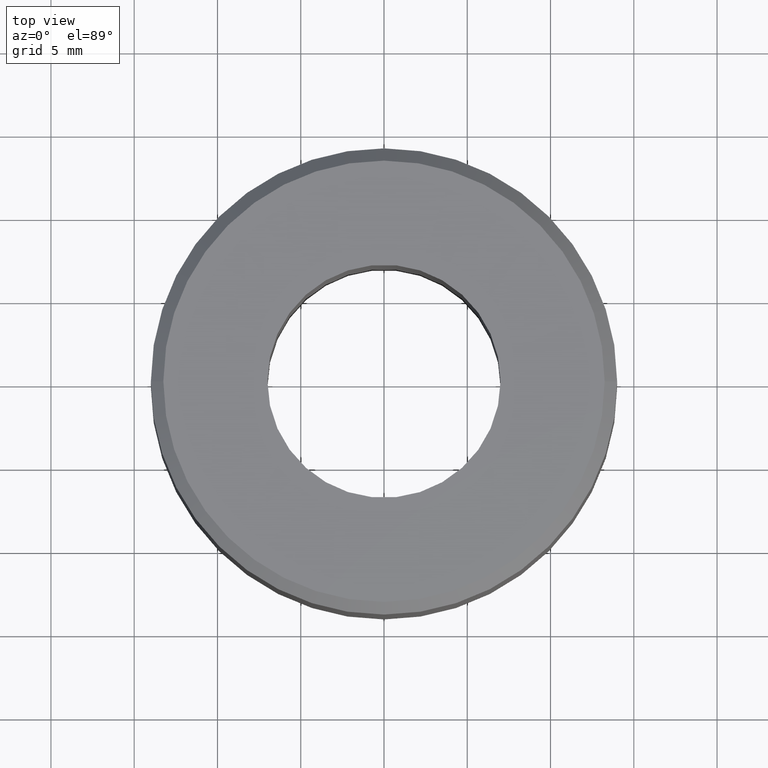
[diagram: clean part render]
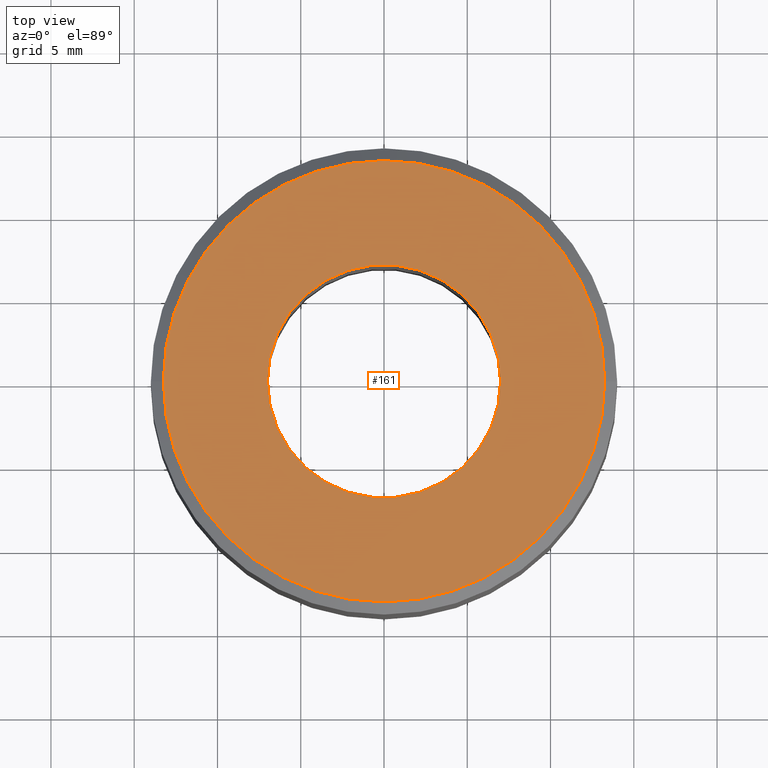
[diagram: same view with one face highlighted and labeled with its STEP entity id]
A machine part, top view. The second image highlights one B-rep face of the part: STEP entity #161.
In plain terms, the highlighted planar face has unit normal (0, 0, -1).
Its self-contained STEP definition (entity closure, byte-faithful):
#8 = EDGE_LOOP ( 'NONE', ( #77, #211 ) ) ;
#13 = DIRECTION ( 'NONE',  ( 1.000000000000000000, 0.0000000000000000000, 0.0000000000000000000 ) ) ;
#17 = DIRECTION ( 'NONE',  ( 1.000000000000000000, 0.0000000000000000000, 0.0000000000000000000 ) ) ;
#19 = EDGE_CURVE ( 'NONE', #275, #164, #284, .T. ) ;
#25 = AXIS2_PLACEMENT_3D ( 'NONE', #328, #269, #206 ) ;
#32 = CIRCLE ( 'NONE', #261, 13.24999999999981700 ) ;
#35 = PLANE ( 'NONE',  #170 ) ;
#40 = DIRECTION ( 'NONE',  ( -0.0000000000000000000, -0.0000000000000000000, 1.000000000000000000 ) ) ;
#53 = CIRCLE ( 'NONE', #196, 13.24999999999981700 ) ;
#77 = ORIENTED_EDGE ( 'NONE', *, *, #228, .F. ) ;
#107 = DIRECTION ( 'NONE',  ( -1.000000000000000000, 0.0000000000000000000, -0.0000000000000000000 ) ) ;
#108 = EDGE_LOOP ( 'NONE', ( #177, #316 ) ) ;
#118 = VERTEX_POINT ( 'NONE', #332 ) ;
#130 = FACE_BOUND ( 'NONE', #8, .T. ) ;
#140 = CARTESIAN_POINT ( 'NONE',  ( 0.0000000000000000000, 13.24999999999981700, 19.00000000000057200 ) ) ;
#160 = EDGE_CURVE ( 'NONE', #333, #118, #32, .T. ) ;
#161 = ADVANCED_FACE ( 'NONE', ( #130, #315 ), #35, .F. ) ;
#164 = VERTEX_POINT ( 'NONE', #193 ) ;
#170 = AXIS2_PLACEMENT_3D ( 'NONE', #140, #246, #107 ) ;
#177 = ORIENTED_EDGE ( 'NONE', *, *, #160, .T. ) ;
#186 = DIRECTION ( 'NONE',  ( -0.0000000000000000000, -0.0000000000000000000, 1.000000000000000000 ) ) ;
#190 = CARTESIAN_POINT ( 'NONE',  ( -13.24999999999981700, 0.0000000000000000000, 19.00000000000057200 ) ) ;
#192 = DIRECTION ( 'NONE',  ( -0.0000000000000000000, -0.0000000000000000000, 1.000000000000000000 ) ) ;
#193 = CARTESIAN_POINT ( 'NONE',  ( 6.999999999999997300, 0.0000000000000000000, 19.00000000000057200 ) ) ;
#196 = AXIS2_PLACEMENT_3D ( 'NONE', #214, #40, #13 ) ;
#206 = DIRECTION ( 'NONE',  ( 1.000000000000000000, 0.0000000000000000000, 0.0000000000000000000 ) ) ;
#209 = EDGE_CURVE ( 'NONE', #118, #333, #53, .T. ) ;
#211 = ORIENTED_EDGE ( 'NONE', *, *, #19, .F. ) ;
#214 = CARTESIAN_POINT ( 'NONE',  ( 0.0000000000000000000, 0.0000000000000000000, 19.00000000000057200 ) ) ;
#219 = CARTESIAN_POINT ( 'NONE',  ( 0.0000000000000000000, 0.0000000000000000000, 19.00000000000057200 ) ) ;
#228 = EDGE_CURVE ( 'NONE', #164, #275, #329, .T. ) ;
#244 = CARTESIAN_POINT ( 'NONE',  ( 0.0000000000000000000, 0.0000000000000000000, 19.00000000000057200 ) ) ;
#246 = DIRECTION ( 'NONE',  ( 0.0000000000000000000, 0.0000000000000000000, -1.000000000000000000 ) ) ;
#261 = AXIS2_PLACEMENT_3D ( 'NONE', #219, #192, #17 ) ;
#264 = AXIS2_PLACEMENT_3D ( 'NONE', #244, #186, #303 ) ;
#269 = DIRECTION ( 'NONE',  ( -0.0000000000000000000, -0.0000000000000000000, 1.000000000000000000 ) ) ;
#275 = VERTEX_POINT ( 'NONE', #321 ) ;
#284 = CIRCLE ( 'NONE', #25, 6.999999999999997300 ) ;
#303 = DIRECTION ( 'NONE',  ( 1.000000000000000000, 0.0000000000000000000, 0.0000000000000000000 ) ) ;
#315 = FACE_OUTER_BOUND ( 'NONE', #108, .T. ) ;
#316 = ORIENTED_EDGE ( 'NONE', *, *, #209, .T. ) ;
#321 = CARTESIAN_POINT ( 'NONE',  ( -6.999999999999997300, 8.572527594031471200E-016, 19.00000000000057200 ) ) ;
#328 = CARTESIAN_POINT ( 'NONE',  ( 0.0000000000000000000, 0.0000000000000000000, 19.00000000000057200 ) ) ;
#329 = CIRCLE ( 'NONE', #264, 6.999999999999997300 ) ;
#332 = CARTESIAN_POINT ( 'NONE',  ( 13.24999999999981700, 1.668581263838265000E-015, 19.00000000000057200 ) ) ;
#333 = VERTEX_POINT ( 'NONE', #190 ) ;